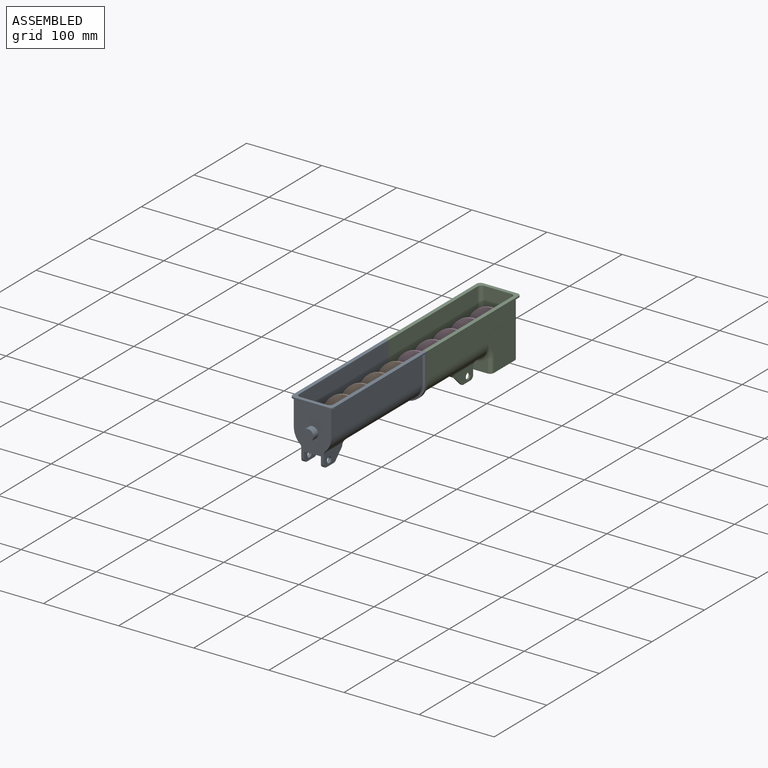
[diagram: assembled view]
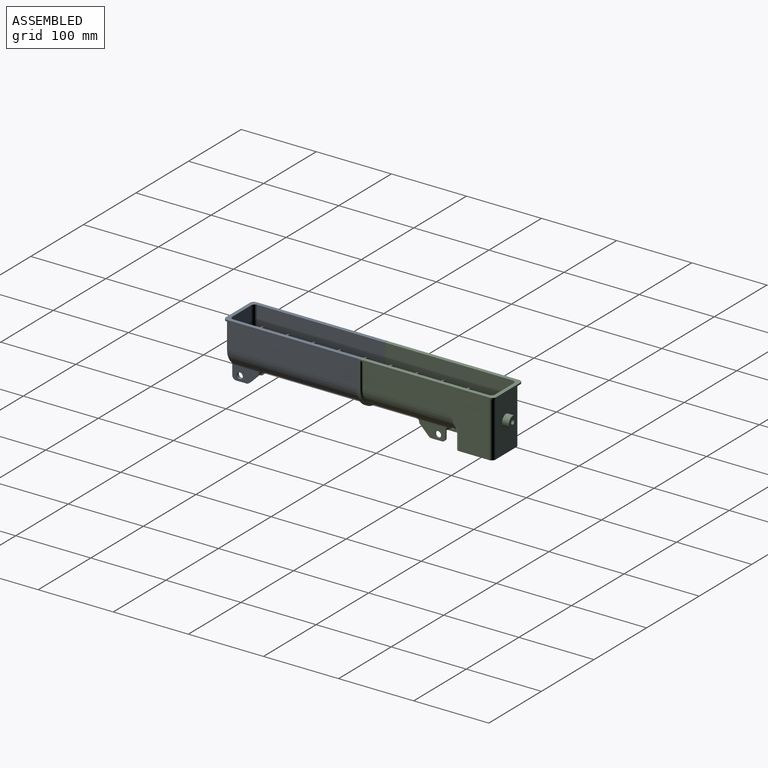
[diagram: assembled view, second angle]
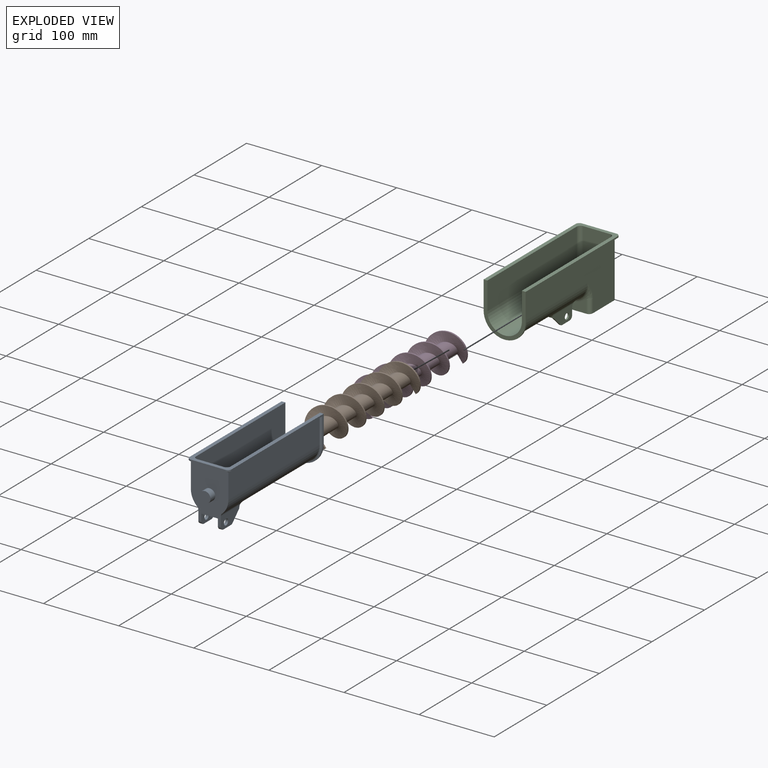
[diagram: exploded view]
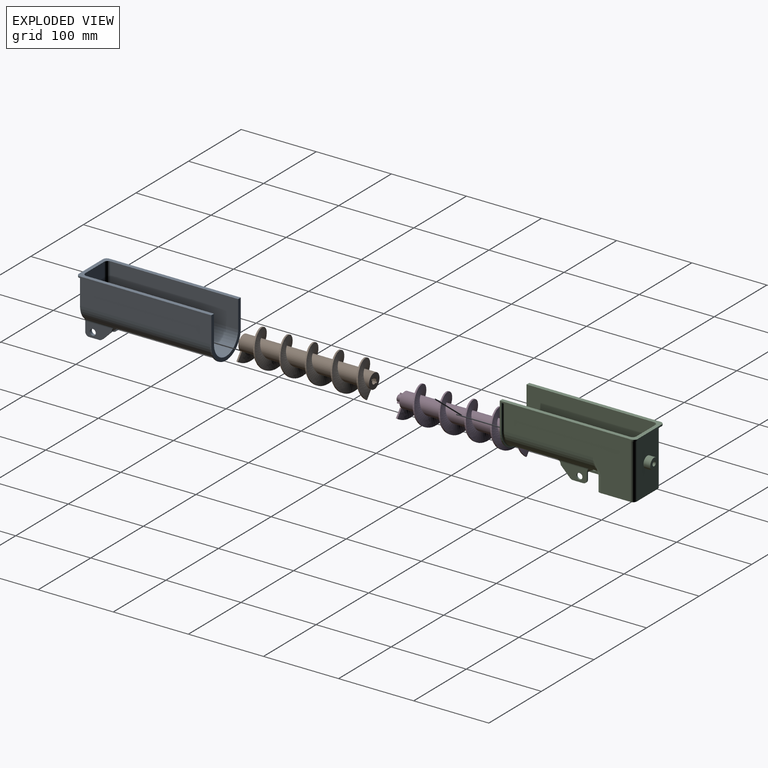
[diagram: exploded view, second angle]
ASSEMBLY  parts=4 mates=4
PART A: 57 faces, bbox 61.8x186.2x77.2 mm
  f0: plane 176x1mm, normal (0,0,-1), area 175mm2, adj f18,f21,f49,f54
  f1: plane 176x1mm, normal (0,0,-1), area 175mm2, adj f19,f21,f50,f51
  f2: plane 0.03x0.02mm, normal (0,1,0), area 0mm2, adj f5,f30,f38
  f3: plane 36.06x17.64mm, normal (1,0,0), area 464.4mm2, adj f4,f8,f12,f31,f32,f33,f35,f41
  f4: plane 0.03x0.02mm, normal (0,1,0), area 0mm2, adj f3,f32,f43
  f5: plane 36.08x17.66mm, normal (-1,0,0), area 464.4mm2, adj f2,f12,f27,f29,f30,f34,f36,f37
  f6: plane 35x14mm, normal (-1,0,0), area 335.8mm2, adj f8,f12,f28,f31,f32,f33,f35
  f7: plane 35x14mm, normal (1,0,0), area 335.8mm2, adj f12,f27,f28,f29,f30,f34,f36
  f8: plane 13.93x4mm, normal (0,0,-1), area 55.7mm2, adj f3,f6,f33,f35
  f9: cylinder r=25mm len=173mm, axis (0,1,0), area 12154.3mm2, adj f10,f11,f12,f37,f38,f39,f40,f41
  f10: plane 173x33mm, normal (-1,0,0), area 5709mm2, adj f9,f12,f51,f53
  f11: plane 173x33mm, normal (1,0,0), area 5709mm2, adj f9,f12,f54,f56
  f12: plane 68x50mm, normal (0,-1,0), area 2606.3mm2, adj f3,f5,f6,f7,f9,f10,f11,f25
  f13: plane 170x37mm, normal (1,0,0), area 6290mm2, adj f14,f20,f24,f46
  f14: cylinder r=23mm len=170mm, axis (0,1,0), area 12283.6mm2, adj f13,f15,f20,f45
  f15: plane 170x37mm, normal (-1,0,0), area 6290mm2, adj f14,f20,f24,f44
  f16: plane 55x36mm, normal (0,1,0), area 1812.7mm2, adj f24,f44,f45,f46,f48
  f17: cylinder r=28mm len=56mm, axis (0,-1,0), area 175.9mm2, adj f18,f19,f20,f21
  f18: plane 175x37mm, normal (1,0,0), area 420mm2, adj f0,f17,f20,f21,f24,f49
  f19: plane 175x37mm, normal (-1,0,0), area 420mm2, adj f1,f17,f20,f21,f24,f50
  f20: plane 65x56mm, normal (0,1,0), area 770.6mm2, adj f13,f14,f15,f17,f18,f19,f24
  f21: plane 63x56mm, normal (0,-1,0), area 156.4mm2, adj f0,f1,f17,f18,f19,f53,f55,f56
  f22: plane 52x1mm, normal (0,0,-1), area 50.1mm2, adj f23,f49,f50,f52
  f23: plane 46x2mm, normal (0,-1,0), area 92mm2, adj f22,f24,f49,f50
  f24: plane 180x56mm, normal (0,0,1), area 2030mm2, adj f13,f15,f16,f18,f19,f20,f23,f44
  f25: cylinder r=7.5mm len=15mm, axis (0,1,0), area 424.1mm2, adj f12,f26
  f26: plane 15x15mm, normal (0,-1,0), area 176.7mm2, adj f25
  f27: plane 13.93x4mm, normal (0,0,-1), area 55.7mm2, adj f5,f7,f34,f36
  f28: plane 35.24x22.24mm, normal (0,0,-1), area 770mm2, adj f6,f7,f12,f40
  f29: cylinder r=4mm len=8mm, axis (1,0,0), area 100.5mm2, adj f5,f7
  f30: plane 12.58x12.58mm, normal (0,0.71,-0.71), area 70.9mm2, adj f2,f5,f7,f34,f39
  f31: cylinder r=4mm len=8mm, axis (1,0,0), area 100.5mm2, adj f3,f6
  f32: plane 12.58x12.58mm, normal (0,0.71,-0.71), area 70.9mm2, adj f3,f4,f6,f33,f42
  f33: cylinder r=5mm len=4mm, axis (-1,0,0), area 15.7mm2, adj f3,f6,f8,f32
  f34: cylinder r=5mm len=4mm, axis (-1,0,0), area 15.7mm2, adj f5,f7,f27,f30
  f35: cylinder r=5mm len=5mm, axis (1,0,0), area 31.4mm2, adj f3,f6,f8,f12
  f36: cylinder r=5mm len=5mm, axis (1,0,0), area 31.4mm2, adj f5,f7,f12,f27
  f37: cylinder r=5mm len=40mm, axis (0,1,0), area 159.9mm2, adj f5,f9,f12,f38
  f38: torus R=30mm, axis (0,-1,0), area 18.4mm2, adj f2,f5,f9,f37,f39
  f39: bspline ~7.8x5.41mm, area 23.9mm2, adj f9,f30,f38,f40
  f40: bspline ~24.31x4.82mm, area 84.8mm2, adj f9,f28,f39,f42
  f41: cylinder r=5mm len=40mm, axis (0,1,0), area 159.9mm2, adj f3,f9,f12,f43
  f42: bspline ~8.21x5.46mm, area 23.9mm2, adj f9,f32,f40,f43
  f43: torus R=30mm, axis (0,-1,0), area 18.4mm2, adj f3,f4,f9,f41,f42
  f44: cylinder r=5mm len=37mm, axis (0,0,1), area 290.6mm2, adj f15,f16,f24,f45
  f45: torus R=18mm, axis (0,-1,0), area 522.7mm2, adj f14,f16,f44,f46
  f46: cylinder r=5mm len=37mm, axis (0,0,-1), area 290.6mm2, adj f13,f16,f24,f45
  f47: plane 6x6mm, normal (0,1,0), area 28.3mm2, adj f48
  f48: cylinder r=3mm len=7mm, axis (0,1,0), area 131.9mm2, adj f16,f47
  f49: cylinder r=5mm len=5mm, axis (0,0,1), area 15.7mm2, adj f0,f18,f22,f23,f24,f52,f54
  f50: cylinder r=5mm len=5mm, axis (0,0,-1), area 15.7mm2, adj f1,f19,f22,f23,f24,f51,f52
  f51: cylinder r=2mm len=176.54mm, axis (0,1,0), area 550.1mm2, adj f1,f10,f50,f52,f53
  f52: cylinder r=2mm len=53.07mm, axis (1,0,0), area 162.4mm2, adj f12,f22,f49,f50,f51,f54
  f53: cylinder r=2mm len=35mm, axis (0,0,-1), area 106.8mm2, adj f10,f21,f51,f55
  f54: cylinder r=2mm len=176.54mm, axis (0,1,0), area 550.1mm2, adj f0,f11,f49,f52,f56
  f55: torus R=27mm, axis (0,-1,0), area 253.9mm2, adj f9,f21,f53,f56
  f56: cylinder r=2mm len=35mm, axis (0,0,1), area 106.8mm2, adj f11,f21,f54,f55
PART B: 33 faces, bbox 45x179x45 mm
  f0: cylinder r=2.5mm len=5mm, axis (0,-1,0), area 78.5mm2, adj f2,f29
  f1: cylinder r=10mm len=174mm, axis (0,1,0), area 10304.9mm2, adj f2,f3,f4,f6,f7,f8
  f2: plane 20x20mm, normal (0,1,0), area 294.5mm2, adj f0,f1
  f3: plane 12.5x2mm, normal (0,0,1), area 25mm2, adj f1,f5,f6,f7
  f4: plane 12.5x2mm, normal (0,0,-1), area 25mm2, adj f1,f5,f6,f7
  f5: cylinder r=22.5mm len=174mm, axis (0,-1,0), area 1413.7mm2, adj f3,f4,f6,f7
  f6: bspline ~172x45mm, area 6746.2mm2, adj f1,f3,f4,f5
  f7: bspline ~172x45mm, area 6746.2mm2, adj f1,f3,f4,f5
  f8: plane 20x20mm, normal (0,-1,0), area 255.7mm2, adj f1,f21,f22,f23,f24,f25,f26,f27
  f9: cylinder r=6.2mm len=6.2mm, axis (0,-1,0), area 40.9mm2, adj f15,f16,f17,f18
  f10: cylinder r=6.25mm len=6.25mm, axis (0,-1,0), area 54mm2, adj f11,f12,f13,f20
  f11: plane 5.5x2.25mm, normal (0,0,-1), area 12.4mm2, adj f10,f12,f20,f27
  f12: plane 7.25x6.25mm, normal (0,1,0), area 16.3mm2, adj f10,f11,f13,f25,f26,f27,f28
  f13: plane 5.5x1mm, normal (0,0,1), area 5.5mm2, adj f10,f12,f20,f25
  f14: plane 7.3x2.13mm, normal (-1,0,0), area 15.5mm2, adj f18,f19,f20,f24
  f15: plane 4.2x2.2mm, normal (0,0,1), area 9.2mm2, adj f9,f16,f18,f24
  f16: plane 7.2x6.2mm, normal (0,1,0), area 15.8mm2, adj f9,f15,f17,f21,f22,f23,f24
  f17: plane 4.2x1mm, normal (0,0,-1), area 4.2mm2, adj f9,f16,f18,f21
  f18: plane 7.2x6.2mm, normal (0,-1,0), area 15.8mm2, adj f9,f14,f15,f17,f19,f21,f24
  f19: plane 7.3x2mm, normal (0,0,-1), area 14.6mm2, adj f14,f18,f20,f21
  f20: plane 12.25x10.25mm, normal (0,-1,0), area 74.8mm2, adj f10,f11,f13,f14,f19,f21,f24,f25
  f21: plane 16.5x2.33mm, normal (1,0,0), area 35.9mm2, adj f8,f16,f17,f18,f19,f20,f22,f27
  f22: plane 5x2mm, normal (0,0,-1), area 10mm2, adj f8,f16,f21,f23
  f23: plane 5x2.13mm, normal (-1,0,0), area 10.6mm2, adj f8,f16,f22,f24
  f24: cylinder r=4mm len=16.5mm, axis (0,-1,0), area 151.8mm2, adj f8,f14,f15,f16,f18,f20,f23,f25
  f25: plane 16.5x2.38mm, normal (-1,0,0), area 36.5mm2, adj f8,f12,f13,f20,f24,f28
  f26: plane 11x2.13mm, normal (1,0,0), area 23.4mm2, adj f8,f12,f27,f28
  f27: cylinder r=4mm len=16.5mm, axis (0,-1,0), area 145mm2, adj f8,f11,f12,f20,f21,f26
  f28: plane 11x2mm, normal (0,0,1), area 22mm2, adj f8,f12,f25,f26
  f29: plane 5x5mm, normal (0,1,0), area 19.6mm2, adj f0
  f30: plane 16x16mm, normal (0,1,0), area 201.1mm2, adj f32
  f31: plane 16x16mm, normal (0,-1,0), area 201.1mm2, adj f32
  f32: cylinder r=8mm len=146mm, axis (0,-1,0), area 7338.8mm2, adj f30,f31
PART C: 73 faces, bbox 73x186.4x77.4 mm
  f0: cylinder r=3mm len=11mm, axis (0,1,0), area 207.3mm2, adj f16,f26
  f1: cylinder r=25mm len=118mm, axis (0,1,0), area 7651.9mm2, adj f10,f11,f37,f38,f39,f40,f41,f42
  f2: plane 0.03x0.02mm, normal (0,1,0), area 0mm2, adj f6,f31,f41
  f3: plane 9.02x2mm, normal (0,-1,0), area 17mm2, adj f4,f7,f44,f45
  f4: plane 37.14x17.66mm, normal (1,0,0), area 465.7mm2, adj f3,f5,f9,f32,f33,f34,f40,f42
  f5: plane 0.03x0.02mm, normal (0,1,0), area 0mm2, adj f4,f33,f40
  f6: plane 37.16x17.68mm, normal (-1,0,0), area 465.7mm2, adj f2,f27,f29,f30,f31,f35,f36,f41
  f7: plane 35.09x14.01mm, normal (-1,0,0), area 335.9mm2, adj f3,f9,f28,f32,f33,f34,f44,f45
  f8: plane 35.09x14.01mm, normal (1,0,0), area 335.9mm2, adj f27,f28,f29,f30,f31,f35,f36,f44
  f9: plane 13.93x2mm, normal (0,0,-1), area 27.9mm2, adj f4,f7,f34,f45
  f10: plane 168x73mm, normal (-1,0,0), area 7225.4mm2, adj f1,f46,f61,f62,f64,f65,f67
  f11: plane 168x73mm, normal (1,0,0), area 7225.4mm2, adj f1,f46,f59,f60,f63,f71,f72
  f12: plane 73x40mm, normal (0,-1,0), area 2743.3mm2, adj f25,f46,f63,f64,f68
  f13: plane 170x77mm, normal (1,0,0), area 7807.6mm2, adj f14,f20,f24,f46,f50,f52,f55
  f14: cylinder r=23mm len=124mm, axis (0,1,0), area 8959.8mm2, adj f13,f15,f20,f53
  f15: plane 170x77mm, normal (-1,0,0), area 7807.6mm2, adj f14,f20,f24,f46,f49,f51,f56
  f16: plane 77x36mm, normal (0,1,0), area 2743.7mm2, adj f0,f24,f46,f55,f56
  f17: cylinder r=28mm len=56mm, axis (0,-1,0), area 175.9mm2, adj f18,f19,f20,f21
  f18: plane 175x37mm, normal (1,0,0), area 420mm2, adj f17,f20,f21,f22,f24,f57
  f19: plane 175x37mm, normal (-1,0,0), area 420mm2, adj f17,f20,f21,f22,f24,f58
  f20: plane 65x56mm, normal (0,1,0), area 770.6mm2, adj f13,f14,f15,f17,f18,f19,f24
  f21: plane 63x56mm, normal (0,-1,0), area 156.4mm2, adj f17,f18,f19,f22,f67,f69,f71
  f22: plane 178x56mm, normal (0,0,-1), area 420.3mm2, adj f18,f19,f21,f23,f57,f58,f65,f66
  f23: plane 46x2mm, normal (0,-1,0), area 92mm2, adj f22,f24,f57,f58
  f24: plane 180x56mm, normal (0,0,1), area 2030mm2, adj f13,f15,f16,f18,f19,f20,f23,f55
  f25: cylinder r=7.5mm len=15mm, axis (0,1,0), area 424.1mm2, adj f12,f26
  f26: plane 15x15mm, normal (0,-1,0), area 148.4mm2, adj f0,f25
  f27: plane 13.93x2mm, normal (0,0,-1), area 27.9mm2, adj f6,f8,f35,f36
  f28: plane 37.38x26.38mm, normal (0,0,-1), area 939.2mm2, adj f7,f8,f37,f44
  f29: plane 9.02x2mm, normal (0,-1,0), area 17mm2, adj f6,f8,f36,f44
  f30: cylinder r=4mm len=8mm, axis (1,0,0), area 50.3mm2, adj f6,f8
  f31: plane 12.55x12.55mm, normal (0,0.71,-0.71), area 35.5mm2, adj f2,f6,f8,f35,f39
  f32: cylinder r=4mm len=8mm, axis (1,0,0), area 50.3mm2, adj f4,f7
  f33: plane 12.55x12.55mm, normal (0,0.71,-0.71), area 35.5mm2, adj f4,f5,f7,f34,f38
  f34: cylinder r=5mm len=3.54mm, axis (-1,0,0), area 7.9mm2, adj f4,f7,f9,f33
  f35: cylinder r=5mm len=3.54mm, axis (-1,0,0), area 7.9mm2, adj f6,f8,f27,f31
  f36: cylinder r=5mm len=5mm, axis (1,0,0), area 15.7mm2, adj f6,f8,f27,f29
  f37: bspline ~27.8x4.98mm, area 107.6mm2, adj f1,f28,f38,f39
  f38: bspline ~6.8x5.46mm, area 12.5mm2, adj f1,f33,f37,f40
  f39: bspline ~5.41x5.16mm, area 12.5mm2, adj f1,f31,f37,f41
  f40: torus R=30mm, axis (0,-1,0), area 18.4mm2, adj f1,f4,f5,f38,f42
  f41: torus R=30mm, axis (0,-1,0), area 18.4mm2, adj f1,f2,f6,f39,f43
  f42: cylinder r=5mm len=45mm, axis (0,1,0), area 172.7mm2, adj f1,f4,f40,f44
  f43: cylinder r=5mm len=45mm, axis (0,1,0), area 172.7mm2, adj f1,f6,f41,f44
  f44: torus R=30mm, axis (0,-1,0), area 171.7mm2, adj f1,f3,f4,f6,f7,f8,f28,f29
  f45: cylinder r=5mm len=5mm, axis (1,0,0), area 15.7mm2, adj f3,f4,f7,f9
  f46: plane 50x50mm, normal (0,0,-1), area 384mm2, adj f10,f11,f12,f13,f15,f16,f47,f48
  f47: plane 36x18.55mm, normal (0,-1,0), area 506.5mm2, adj f46,f49,f50,f53
  f48: plane 40x17.64mm, normal (0,1,0), area 496mm2, adj f46,f54,f59,f61
  f49: cylinder r=5mm len=18.55mm, axis (0,0,1), area 145.7mm2, adj f15,f46,f47,f51
  f50: cylinder r=5mm len=18.55mm, axis (0,0,1), area 145.7mm2, adj f13,f46,f47,f52
  f51: bspline ~24.82x10mm, area 91.4mm2, adj f15,f49,f53
  f52: bspline ~24.82x10mm, area 91.4mm2, adj f13,f50,f53
  f53: torus R=28mm, axis (0,1,0), area 411.2mm2, adj f14,f47,f51,f52
  f54: torus R=30mm, axis (0,1,0), area 454.1mm2, adj f1,f48,f60,f62
  f55: cylinder r=5mm len=77mm, axis (0,0,-1), area 604.8mm2, adj f13,f16,f24,f46
  f56: cylinder r=5mm len=77mm, axis (0,0,1), area 604.8mm2, adj f15,f16,f24,f46
  f57: cylinder r=5mm len=5mm, axis (0,0,1), area 15.7mm2, adj f18,f22,f23,f24
  f58: cylinder r=5mm len=5mm, axis (0,0,-1), area 15.7mm2, adj f19,f22,f23,f24
  f59: cylinder r=5mm len=17.64mm, axis (0,0,-1), area 138.5mm2, adj f11,f46,f48,f60
  f60: bspline ~24.06x10mm, area 94.2mm2, adj f11,f54,f59
  f61: cylinder r=5mm len=17.64mm, axis (0,0,-1), area 138.5mm2, adj f10,f46,f48,f62
  f62: bspline ~24.06x10mm, area 94.2mm2, adj f10,f54,f61
  f63: cylinder r=5mm len=73mm, axis (0,0,-1), area 573.3mm2, adj f11,f12,f46,f70
  f64: cylinder r=5mm len=73mm, axis (0,0,1), area 573.3mm2, adj f10,f12,f46,f66
  f65: cylinder r=2mm len=170mm, axis (0,1,0), area 530.9mm2, adj f10,f22,f66,f67
  f66: torus R=7mm, axis (0,0,1), area 28.3mm2, adj f22,f64,f65,f68
  f67: cylinder r=2mm len=35mm, axis (0,0,-1), area 106.8mm2, adj f10,f21,f65,f69
  f68: cylinder r=2mm len=40mm, axis (1,0,0), area 125.7mm2, adj f12,f22,f66,f70
  f69: torus R=27mm, axis (0,-1,0), area 253.9mm2, adj f1,f21,f67,f71
  f70: torus R=7mm, axis (0,0,1), area 28.3mm2, adj f22,f63,f68,f72
  f71: cylinder r=2mm len=35mm, axis (0,0,1), area 106.8mm2, adj f11,f21,f69,f72
  f72: cylinder r=2mm len=170mm, axis (0,1,0), area 530.9mm2, adj f11,f22,f70,f71
PART D: 32 faces, bbox 45x180x45 mm
  f0: plane 4x1mm, normal (1,0,0), area 4mm2, adj f1,f5,f29,f31
  f1: plane 4x2.13mm, normal (0,0,1), area 8.5mm2, adj f0,f25,f29,f31
  f2: plane 4x1mm, normal (-1,0,0), area 4mm2, adj f3,f4,f30,f31
  f3: plane 4x2.13mm, normal (0,0,-1), area 8.5mm2, adj f2,f26,f30,f31
  f4: plane 4x2.13mm, normal (0,0,1), area 8.5mm2, adj f2,f6,f30,f31
  f5: plane 4x2.13mm, normal (0,0,-1), area 8.5mm2, adj f0,f6,f29,f31
  f6: cylinder r=4mm len=8mm, axis (0,1,0), area 167.8mm2, adj f4,f5,f7,f8,f24,f25,f26,f27
  f7: plane 3x2.78mm, normal (-1,0,0), area 8.4mm2, adj f6,f27,f30
  f8: plane 3x2.78mm, normal (1,0,0), area 8.4mm2, adj f6,f28,f29
  f9: cylinder r=10mm len=172mm, axis (0,1,0), area 10230.6mm2, adj f17,f19,f22,f23,f24
  f10: plane 16x16mm, normal (0,1,0), area 201.1mm2, adj f12
  f11: plane 16x16mm, normal (0,-1,0), area 166.6mm2, adj f12,f13,f14,f15,f16
  f12: cylinder r=8mm len=168mm, axis (0,-1,0), area 8444.6mm2, adj f10,f11
  f13: plane 7.75x2mm, normal (0,0,-1), area 15.5mm2, adj f11,f14,f17
  f14: cylinder r=4mm len=7.75mm, axis (0,1,0), area 21.1mm2, adj f11,f13,f17
  f15: cylinder r=4mm len=7.75mm, axis (0,1,0), area 21.1mm2, adj f11,f16,f17
  f16: plane 7.75x2mm, normal (0,0,1), area 15.5mm2, adj f11,f15,f17
  f17: plane 20x20mm, normal (0,1,0), area 279.7mm2, adj f9,f13,f14,f15,f16
  f18: cylinder r=10mm len=3.56mm, axis (0,-1,0), area 3.7mm2, adj f20,f23,f24
  f19: plane 12.5x2mm, normal (0,0,1), area 25mm2, adj f9,f21,f22,f23
  f20: plane 12.5x2mm, normal (0,0,-1), area 25mm2, adj f18,f21,f22,f23
  f21: cylinder r=22.5mm len=174mm, axis (0,-1,0), area 1413.7mm2, adj f19,f20,f22,f23
  f22: bspline ~172x45mm, area 6746.2mm2, adj f9,f19,f20,f21
  f23: bspline ~172x45mm, area 6746.2mm2, adj f9,f18,f19,f20,f21
  f24: plane 20x20mm, normal (0,-1,0), area 263.9mm2, adj f6,f9,f18
  f25: plane 4x1mm, normal (1,0,0), area 4mm2, adj f1,f6,f29,f31
  f26: plane 4x1mm, normal (-1,0,0), area 4mm2, adj f3,f6,f30,f31
  f27: plane 2.78x0.25mm, normal (0,-1,0), area 0.5mm2, adj f6,f7
  f28: plane 2.78x0.25mm, normal (0,-1,0), area 0.5mm2, adj f6,f8
  f29: plane 2.78x2.25mm, normal (0,1,0), area 2.4mm2, adj f0,f1,f5,f6,f8,f25
  f30: plane 2.78x2.25mm, normal (0,1,0), area 2.4mm2, adj f2,f3,f4,f6,f7,f26
  f31: plane 12x8mm, normal (0,-1,0), area 54.2mm2, adj f0,f1,f2,f3,f4,f5,f6,f25
PLACE A t=(76.43,77.4,-14.42)mm fixed
PLACE B rot(axis=(0.44,0,0.9),180deg) t=(76.43,-93.1,-14.42)mm
PLACE C rot(axis=(0,0,1),180deg) t=(76.43,81.4,-14.42)mm
PLACE D rot(axis=(0,-1,0),127.6deg) t=(76.43,252.9,-14.42)mm
MATE fastened C.f20 <-> A.f20  axis (0,-1,0) through (76.43,79.4,-14.01)mm
MATE revolute B.f0 <-> A.f25  axis (0,1,0) through (76.43,-95.6,-14.42)mm
MATE planar B.f4 <-> D.f20  axis (-0.79,0,-0.61) through (86.35,79.9,-27.29)mm
MATE cylindrical D.f9 <-> B.f1  axis (0,1,0) through (76.43,166.9,-14.42)mm
